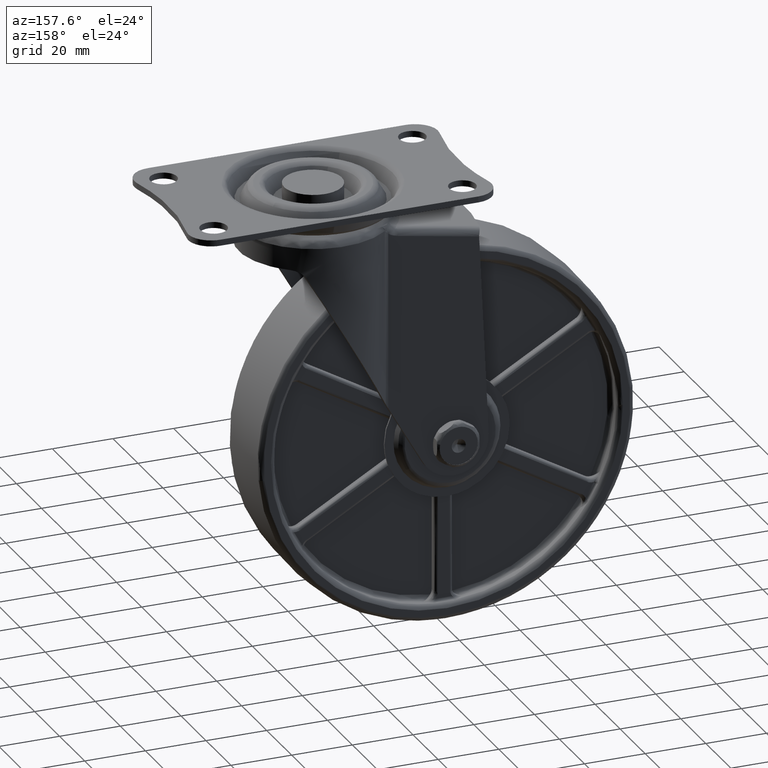
[diagram: clean part render]
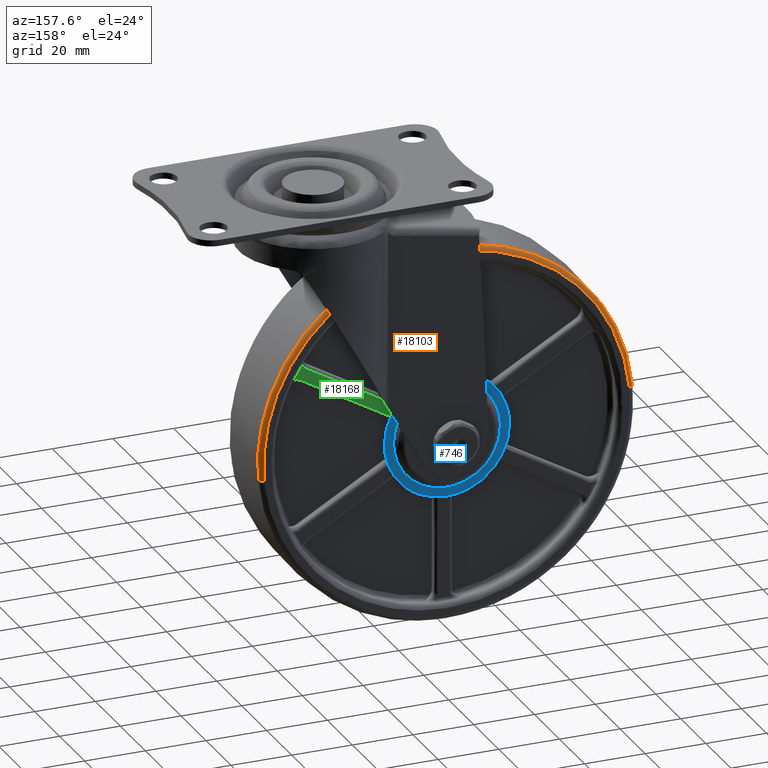
[diagram: same view with three faces highlighted in distinct colors, each labeled with its STEP entity id]
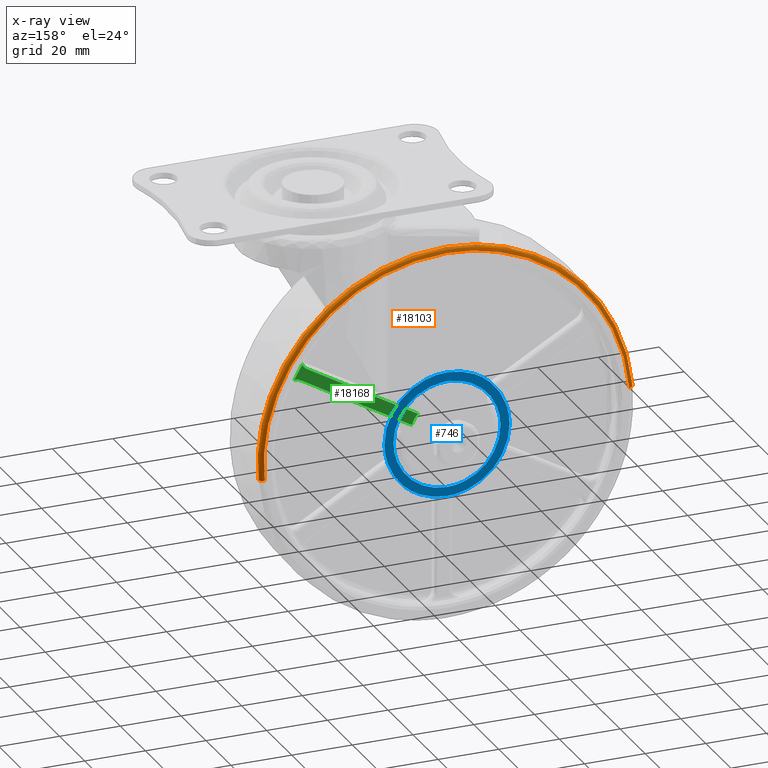
[diagram: x-ray of the same camera — body ghosted, the three highlighted faces saturated]
A machine part, auxiliary view with three faces highlighted in distinct colors.
The next image is the same camera in x-ray (body ghosted, the three faces saturated) — at least one of them is partly hidden behind the body in this view.
Their STEP definitions:

[orange] entity #18103 — the highlighted face is a freeform B-spline surface patch.
#17810=CARTESIAN_POINT('',(-39.0,11.167479376650549,-21.625519350434011));
#17811=VERTEX_POINT('',#17810);
#17830=CARTESIAN_POINT('',(22.635247783619480,11.167480174429510,-88.935746989824423));
#17831=VERTEX_POINT('',#17830);
#17849=CARTESIAN_POINT('',(-39.0,11.167479376650549,-21.625519350434011));
#17850=CARTESIAN_POINT('',(-36.327236504812710,11.167479392428490,-21.625436204308318));
#17851=CARTESIAN_POINT('',(-30.848059092624549,11.167479427066951,-21.981052245683479));
#17852=CARTESIAN_POINT('',(-22.836209396064469,11.167479484706121,-23.585280365068900));
#17853=CARTESIAN_POINT('',(-14.348925162363200,11.167479553578080,-26.496579455980061));
#17854=CARTESIAN_POINT('',(-6.852582633531720,11.167479622959590,-30.394385634689339));
#17855=CARTESIAN_POINT('',(0.561098812728439,11.167479700759200,-35.673679589134721));
#17856=CARTESIAN_POINT('',(7.495005261050967,11.167479783740291,-42.196152746708890));
#17857=CARTESIAN_POINT('',(13.193949125724860,11.167479866626699,-49.834767290464420));
#17858=CARTESIAN_POINT('',(17.492643757010100,11.167479943719179,-57.856973082867533));
#17859=CARTESIAN_POINT('',(20.223005227087629,11.167480005814859,-64.989020017928496));
#17860=CARTESIAN_POINT('',(22.163662488503348,11.167480069293809,-73.058738408794696));
#17861=CARTESIAN_POINT('',(23.003337746006480,11.167480124919431,-80.918753583190565));
#17862=CARTESIAN_POINT('',(22.858365558000070,11.167480159442190,-86.406441837872222));
#17863=CARTESIAN_POINT('',(22.635247783619480,11.167480174429510,-88.935746989824423));
#17864=B_SPLINE_CURVE_WITH_KNOTS('',3,(#17849,#17850,#17851,#17852,#17853,#17854,#17855,#17856,#17857,#17858,#17859,#17860,#17861,#17862,#17863),.UNSPECIFIED.,.F.,.U.,(4,1,1,1,1,1,1,1,1,1,1,1,4),(0.000000117653897,8.018293362872015,16.437623303935649,24.456032366947682,34.879926751580129,41.695552408398363,51.718424526233349,63.345071278760891,70.160716614818426,78.980964381555253,86.197529202244269,95.017749023445518,102.635147940654800),.UNSPECIFIED.);
#17865=EDGE_CURVE('',#17811,#17831,#17864,.T.);
#17904=CARTESIAN_POINT('',(-100.635247783618990,11.167480174434081,-78.064253010175634));
#17905=VERTEX_POINT('',#17904);
#17906=CARTESIAN_POINT('',(-100.635247783618990,11.167480174434081,-78.064253010175634));
#17907=CARTESIAN_POINT('',(-100.414904953145400,11.167480156772410,-75.565195882787862));
#17908=CARTESIAN_POINT('',(-99.616502810798181,11.167480116814319,-70.238804958504062));
#17909=CARTESIAN_POINT('',(-97.439061195035634,11.167480052503310,-62.640872747213081));
#17910=CARTESIAN_POINT('',(-94.723089517752300,11.167479993037260,-56.382648310636583));
#17911=CARTESIAN_POINT('',(-91.484363871463231,11.167479932467661,-50.524155625834261));
#17912=CARTESIAN_POINT('',(-87.185828461512884,11.167479862245489,-44.325808850359522));
#17913=CARTESIAN_POINT('',(-81.031546734159392,11.167479776675179,-37.773396166353557));
#17914=CARTESIAN_POINT('',(-74.723088724136318,11.167479700298900,-32.815533750432103));
#17915=CARTESIAN_POINT('',(-68.923560805985190,11.167479636382129,-29.234606185562559));
#17916=CARTESIAN_POINT('',(-62.162466800557240,11.167479567313960,-25.904746890332849));
#17917=CARTESIAN_POINT('',(-52.140836872104032,11.167479475447150,-22.599288753186570));
#17918=CARTESIAN_POINT('',(-43.778693152678372,11.167479410288600,-21.624481137478970));
#17919=CARTESIAN_POINT('',(-39.0,11.167479376650549,-21.625519350434011));
#17920=B_SPLINE_CURVE_WITH_KNOTS('',3,(#17906,#17907,#17908,#17909,#17910,#17911,#17912,#17913,#17914,#17915,#17916,#17917,#17918,#17919),.UNSPECIFIED.,.F.,.U.,(4,1,1,1,1,1,1,1,1,1,1,4),(0.000000114025838,7.526264355572096,16.127852755789121,23.654190348698361,27.954960147012219,36.198099170252782,46.233103682424179,54.834644143672513,60.210651504038353,66.661788126974500,77.413703663738133,91.749570069429922),.UNSPECIFIED.);
#17921=EDGE_CURVE('',#17905,#17811,#17920,.T.);
#17970=CARTESIAN_POINT('',(21.150392209023689,12.500000000000000,-88.804794337708188));
#17971=VERTEX_POINT('',#17970);
#17990=CARTESIAN_POINT('',(22.635247783619480,11.167480174429510,-88.935746989824423));
#17991=CARTESIAN_POINT('',(22.617571714459750,11.326061267049880,-88.934188098773035));
#17992=CARTESIAN_POINT('',(22.524994353405720,11.659689422503989,-88.926023499437861));
#17993=CARTESIAN_POINT('',(22.219481584537512,12.095671325043011,-88.899079661972138));
#17994=CARTESIAN_POINT('',(21.740574790605919,12.419234874715350,-88.856843827117061));
#17995=CARTESIAN_POINT('',(21.354807093764279,12.500232825927480,-88.822822132353068));
#17996=CARTESIAN_POINT('',(21.150392209023689,12.500000000000000,-88.804794337708188));
#17997=B_SPLINE_CURVE_WITH_KNOTS('',3,(#17990,#17991,#17992,#17993,#17994,#17995,#17996),.UNSPECIFIED.,.F.,.U.,(4,1,1,1,4),(0.000000543512500,0.478742114232636,1.025916645376025,1.573018017012169,2.188552349071501),.UNSPECIFIED.);
#17998=EDGE_CURVE('',#17831,#17971,#17997,.T.);
#18002=CARTESIAN_POINT('',(-99.150392209023678,12.500000000000000,-78.195205662291798));
#18003=VERTEX_POINT('',#18002);
#18004=CARTESIAN_POINT('',(-100.635247783618990,11.167480174434081,-78.064253010175634));
#18005=CARTESIAN_POINT('',(-100.617559488311400,11.326059097008880,-78.065812979477698));
#18006=CARTESIAN_POINT('',(-100.525011302381200,11.659691417362980,-78.073975005795049));
#18007=CARTESIAN_POINT('',(-100.219474002569300,12.095679159442950,-78.100921006698186));
#18008=CARTESIAN_POINT('',(-99.740574499906074,12.419207841271570,-78.143156198520273));
#18009=CARTESIAN_POINT('',(-99.354807835362806,12.500255617818640,-78.177177802244060));
#18010=CARTESIAN_POINT('',(-99.150392209023678,12.500000000000000,-78.195205662291798));
#18011=B_SPLINE_CURVE_WITH_KNOTS('',3,(#18004,#18005,#18006,#18007,#18008,#18009,#18010),.UNSPECIFIED.,.F.,.U.,(4,1,1,1,4),(0.000000543514600,0.478742114233247,1.025916645374767,1.573018017009212,2.188552349066896),.UNSPECIFIED.);
#18012=EDGE_CURVE('',#17905,#18003,#18011,.T.);
#18036=CARTESIAN_POINT('',(-100.643010737075850,11.069002713040794,-78.063568378241428));
#18037=CARTESIAN_POINT('',(-95.206579115317268,11.069002713040790,-16.420557641165576));
#18038=CARTESIAN_POINT('',(-33.563568378241428,11.069002713040794,-21.856989262924127));
#18039=CARTESIAN_POINT('',(28.079442358834424,11.069002713040790,-27.293420884682703));
#18040=CARTESIAN_POINT('',(22.643010737075866,11.069002713040794,-88.936431621758558));
#18041=CARTESIAN_POINT('',(-100.572917373300640,12.597006374195018,-78.069750064936258));
#18042=CARTESIAN_POINT('',(-95.142667438236884,12.597006374195017,-16.496832691635621));
#18043=CARTESIAN_POINT('',(-33.569750064936279,12.597006374195018,-21.927082626699338));
#18044=CARTESIAN_POINT('',(28.003167308364368,12.597006374195017,-27.357332561763080));
#18045=CARTESIAN_POINT('',(22.572917373300648,12.597006374195018,-88.930249935063728));
#18046=CARTESIAN_POINT('',(-99.052483167513955,12.496776293056088,-78.203840475127265));
#18047=CARTESIAN_POINT('',(-93.756323642641249,12.496776293056092,-18.151357307613278));
#18048=CARTESIAN_POINT('',(-33.703840475127251,12.496776293056088,-23.447516832486020));
#18049=CARTESIAN_POINT('',(26.348642692386719,12.496776293056092,-28.743676357358755));
#18050=CARTESIAN_POINT('',(21.052483167513984,12.496776293056088,-88.796159524872735));
#18058=(BOUNDED_SURFACE()B_SPLINE_SURFACE(2,2,((#18036,#18041,#18046),(#18037,#18042,#18047),(#18038,#18043,#18048),(#18039,#18044,#18049),(#18040,#18045,#18050)),.UNSPECIFIED.,.F.,.F.,.U.)B_SPLINE_SURFACE_WITH_KNOTS((3,2,3),(3,3),(0.0,102.529904978388400,205.059809956776800),(0.0,2.519712432201552),.UNSPECIFIED.)GEOMETRIC_REPRESENTATION_ITEM()RATIONAL_B_SPLINE_SURFACE(((0.912994623404275,0.640728022503493,0.917245091500594),(0.645584689396021,0.453063129608467,0.648590224210145),(0.912994623404275,0.640728022503493,0.917245091500594),(0.645584689396021,0.453063129608467,0.648590224210145),(0.912994623404275,0.640728022503493,0.917245091500594)))REPRESENTATION_ITEM('')SURFACE());
#18059=CARTESIAN_POINT('',(-39.0,12.500000000000000,-23.116140247740500));
#18060=VERTEX_POINT('',#18059);
#18061=CARTESIAN_POINT('',(-39.0,12.500000000000000,-23.116140247740500));
#18062=CARTESIAN_POINT('',(-36.782868528527693,12.500000000000000,-23.116110470399239));
#18063=CARTESIAN_POINT('',(-31.566087838570329,12.500000000000000,-23.403705478699301));
#18064=CARTESIAN_POINT('',(-22.952587093422078,12.500000000000000,-25.012329514151070));
#18065=CARTESIAN_POINT('',(-14.702790557765899,12.500000000000000,-27.992596254813460));
#18066=CARTESIAN_POINT('',(-8.130960380322147,12.499999999999989,-31.491577674030768));
#18067=CARTESIAN_POINT('',(-2.911999443180512,12.500000000000069,-34.958796878052290));
#18068=CARTESIAN_POINT('',(2.644260867782579,12.499999999999950,-39.514707573989980));
#18069=CARTESIAN_POINT('',(7.715229721665144,12.500000000000130,-44.981227808847592));
#18070=CARTESIAN_POINT('',(12.353158018876741,12.499999999999879,-51.456639533715432));
#18071=CARTESIAN_POINT('',(16.188857960903778,12.500000000000250,-58.449619517443558));
#18072=CARTESIAN_POINT('',(19.035180485151461,12.500000000000030,-66.183838301606784));
#18073=CARTESIAN_POINT('',(20.629950741299751,12.499999999999989,-73.322497716842889));
#18074=CARTESIAN_POINT('',(21.477289084250991,12.500000000000000,-80.585375358810950));
#18075=CARTESIAN_POINT('',(21.425604264601571,12.500000000000000,-85.686846696391527));
#18076=CARTESIAN_POINT('',(21.150392209023689,12.500000000000000,-88.804794337708188));
#18077=B_SPLINE_CURVE_WITH_KNOTS('',3,(#18061,#18062,#18063,#18064,#18065,#18066,#18067,#18068,#18069,#18070,#18071,#18072,#18073,#18074,#18075,#18076),.UNSPECIFIED.,.F.,.U.,(4,1,1,1,1,1,1,1,1,1,1,1,1,4),(0.000000131234799,6.651413325265722,15.650358515958271,26.214421729012130,32.865851052308876,37.952248383830067,44.994960249876819,54.385053714352161,60.254001556679327,68.861751842509207,78.252004145357148,84.903437332290224,90.772387130978458,100.162562078281890),.UNSPECIFIED.);
#18078=EDGE_CURVE('',#18060,#17971,#18077,.T.);
#18079=ORIENTED_EDGE('',*,*,#18078,.F.);
#18080=CARTESIAN_POINT('',(-99.150392209023678,12.500000000000000,-78.195205662291798));
#18081=CARTESIAN_POINT('',(-98.772175494866588,12.499999999999959,-73.898013153859281));
#18082=CARTESIAN_POINT('',(-97.634399347396410,12.500000000000091,-68.146693416360691));
#18083=CARTESIAN_POINT('',(-94.522319649349228,12.499999999999989,-59.347099011528357));
#18084=CARTESIAN_POINT('',(-91.167329100309203,12.500000000000020,-52.650854499744923));
#18085=CARTESIAN_POINT('',(-85.730551640290273,12.500000000000011,-44.907810543363119));
#18086=CARTESIAN_POINT('',(-80.087785021242212,12.499999999999959,-38.969286414825852));
#18087=CARTESIAN_POINT('',(-73.584452407370009,12.499999999999989,-33.827758793083952));
#18088=CARTESIAN_POINT('',(-67.609726868093190,12.500000000000011,-30.162361324549110));
#18089=CARTESIAN_POINT('',(-60.821864970388162,12.500000000000000,-27.036744365078071));
#18090=CARTESIAN_POINT('',(-53.699905754261529,12.500000000000000,-24.756199529929390));
#18091=CARTESIAN_POINT('',(-46.228406262500968,12.500000000000000,-23.400083587649380));
#18092=CARTESIAN_POINT('',(-41.331742853177794,12.500000000000000,-23.116088753696570));
#18093=CARTESIAN_POINT('',(-39.0,12.500000000000000,-23.116140247740500));
#18094=B_SPLINE_CURVE_WITH_KNOTS('',3,(#18080,#18081,#18082,#18083,#18084,#18085,#18086,#18087,#18088,#18089,#18090,#18091,#18092,#18093),.UNSPECIFIED.,.F.,.U.,(4,1,1,1,1,1,1,1,1,1,1,4),(0.000000115640248,12.941189311116670,17.488130893241991,27.981034963609769,35.326035693901190,45.818867102606902,52.464335335956306,60.159138851686492,66.804657694834162,74.849203116504825,82.543993758639374,89.539228577268645),.UNSPECIFIED.);
#18095=EDGE_CURVE('',#18003,#18060,#18094,.T.);
#18096=ORIENTED_EDGE('',*,*,#18095,.F.);
#18097=ORIENTED_EDGE('',*,*,#18012,.F.);
#18098=ORIENTED_EDGE('',*,*,#17921,.T.);
#18099=ORIENTED_EDGE('',*,*,#17865,.T.);
#18100=ORIENTED_EDGE('',*,*,#17998,.T.);
#18101=EDGE_LOOP('',(#18079,#18096,#18097,#18098,#18099,#18100));
#18102=FACE_OUTER_BOUND('',#18101,.T.);
#18103=ADVANCED_FACE('',(#18102),#18058,.T.);

[blue] entity #746 — the highlighted face is a freeform B-spline surface patch.
#320=CARTESIAN_POINT('',(-52.001000922250071,12.499999736069549,-95.413222438487196));
#321=VERTEX_POINT('',#320);
#322=CARTESIAN_POINT('',(-39.0,12.500000000000000,-101.133799000000000));
#323=VERTEX_POINT('',#322);
#324=CARTESIAN_POINT('',(-52.001000922250071,12.499999736069549,-95.413222438487196));
#325=CARTESIAN_POINT('',(-51.280895526803739,12.499999750688239,-96.199163028339470));
#326=CARTESIAN_POINT('',(-49.414998236827742,12.499999788567440,-97.897464469300530));
#327=CARTESIAN_POINT('',(-46.427081400599882,12.499999849224460,-99.626693015612148));
#328=CARTESIAN_POINT('',(-42.806853694841323,12.499999922717910,-100.841588364399000));
#329=CARTESIAN_POINT('',(-40.446706769832517,12.499999970630739,-101.134168300727100));
#330=CARTESIAN_POINT('',(-39.0,12.500000000000000,-101.133799000000000));
#331=B_SPLINE_CURVE_WITH_KNOTS('',3,(#324,#325,#326,#327,#328,#329,#330),.UNSPECIFIED.,.F.,.U.,(4,1,1,1,4),(0.000000055040529,3.197917781164689,7.537934716903376,10.279036425533381,14.619075494488889),.UNSPECIFIED.);
#332=EDGE_CURVE('',#321,#323,#331,.T.);
#342=CARTESIAN_POINT('',(-25.998999077749890,12.499999736069540,-71.586777561512761));
#343=VERTEX_POINT('',#342);
#349=CARTESIAN_POINT('',(-21.366201000000160,12.500000000000000,-83.499997599629580));
#350=VERTEX_POINT('',#349);
#351=CARTESIAN_POINT('',(-21.366201000000160,12.500000000000000,-83.499997599629580));
#352=CARTESIAN_POINT('',(-21.366051738726629,12.499999974341909,-82.341849617670434));
#353=CARTESIAN_POINT('',(-21.588466887938221,12.499999924536960,-80.093767427239186));
#354=CARTESIAN_POINT('',(-22.507195051149051,12.499999856264580,-77.012107937545807));
#355=CARTESIAN_POINT('',(-23.943782235600040,12.499999792607120,-74.138755292896903));
#356=CARTESIAN_POINT('',(-25.216457951612110,12.499999754984380,-72.440550947544736));
#357=CARTESIAN_POINT('',(-25.998999077749890,12.499999736069540,-71.586777561512761));
#358=B_SPLINE_CURVE_WITH_KNOTS('',3,(#351,#352,#353,#354,#355,#356,#357),.UNSPECIFIED.,.F.,.U.,(4,1,1,1,4),(0.000000053831240,3.474431255063420,6.744446381181831,9.605773603542462,13.080204804807590),.UNSPECIFIED.);
#359=EDGE_CURVE('',#350,#343,#358,.T.);
#361=CARTESIAN_POINT('',(-39.0,12.500000000000000,-101.133799000000000));
#362=CARTESIAN_POINT('',(-37.629455645122320,12.500000000000020,-101.134099978678710));
#363=CARTESIAN_POINT('',(-35.177052193562943,12.499999999999980,-100.846389627496090));
#364=CARTESIAN_POINT('',(-32.225462130867413,12.500000000000041,-99.851118250422132));
#365=CARTESIAN_POINT('',(-29.523537089770990,12.499999999999840,-98.470354643818311));
#366=CARTESIAN_POINT('',(-27.075273822582879,12.500000000000480,-96.654675911225041));
#367=CARTESIAN_POINT('',(-25.046155578321152,12.499999999999410,-94.387721254490444));
#368=CARTESIAN_POINT('',(-23.415618104866670,12.500000000000551,-91.914935079682579));
#369=CARTESIAN_POINT('',(-22.342923198969249,12.499999999999780,-89.534534763077431));
#370=CARTESIAN_POINT('',(-21.551034091281021,12.499999999999950,-86.529502275584974));
#371=CARTESIAN_POINT('',(-21.366046768946351,12.499999999999890,-84.654122853452506));
#372=CARTESIAN_POINT('',(-21.366201000000160,12.500000000000000,-83.499997599629580));
#373=B_SPLINE_CURVE_WITH_KNOTS('',3,(#361,#362,#363,#364,#365,#366,#367,#368,#369,#370,#371,#372),.UNSPECIFIED.,.F.,.U.,(4,1,1,1,1,1,1,1,1,4),(0.000000219318359,4.111594564645085,7.357629063677166,9.305265537298624,13.200529337056841,16.446381198062141,18.394016469191151,22.072884376325099,24.236923409433452,27.699281849681249),.UNSPECIFIED.);
#374=EDGE_CURVE('',#323,#350,#373,.T.);
#397=CARTESIAN_POINT('',(-56.633798999999833,12.500000000000000,-83.500002400370278));
#398=VERTEX_POINT('',#397);
#399=CARTESIAN_POINT('',(-56.633798999999833,12.500000000000000,-83.500002400370278));
#400=CARTESIAN_POINT('',(-56.634115165177803,12.499999969813530,-84.862552919897766));
#401=CARTESIAN_POINT('',(-56.411552089112249,12.499999927556960,-86.769913960714447));
#402=CARTESIAN_POINT('',(-55.531514086666810,12.499999859272121,-89.852139948105204));
#403=CARTESIAN_POINT('',(-54.261640126860733,12.499999798673560,-92.587422459620655));
#404=CARTESIAN_POINT('',(-52.783516757691622,12.499999754984630,-94.559436939172315));
#405=CARTESIAN_POINT('',(-52.001000922250071,12.499999736069549,-95.413222438487196));
#406=B_SPLINE_CURVE_WITH_KNOTS('',3,(#399,#400,#401,#402,#403,#404,#405),.UNSPECIFIED.,.F.,.U.,(4,1,1,1,4),(0.000000053829879,4.087564431660432,5.722591268249875,9.605773603543263,13.080204804807700),.UNSPECIFIED.);
#407=EDGE_CURVE('',#398,#321,#406,.T.);
#409=CARTESIAN_POINT('',(-39.0,12.500000000000000,-65.866201000000018));
#410=VERTEX_POINT('',#409);
#411=CARTESIAN_POINT('',(-39.0,12.500000000000000,-65.866201000000018));
#412=CARTESIAN_POINT('',(-40.370557046189099,12.500000000000011,-65.865874925218137));
#413=CARTESIAN_POINT('',(-42.606515977186163,12.499999999999970,-66.128309413628912));
#414=CARTESIAN_POINT('',(-45.916272894477622,12.500000000000041,-67.176736181108865));
#415=CARTESIAN_POINT('',(-48.611457681105122,12.499999999999940,-68.596147832684011));
#416=CARTESIAN_POINT('',(-51.166193939719193,12.500000000000000,-70.615334676371305));
#417=CARTESIAN_POINT('',(-53.292141808311328,12.500000000000140,-72.990027734936731));
#418=CARTESIAN_POINT('',(-55.192808058998537,12.499999999999710,-76.160572707845503));
#419=CARTESIAN_POINT('',(-56.378217603704101,12.500000000000631,-79.749060096027065));
#420=CARTESIAN_POINT('',(-56.633882202881871,12.499999999999311,-82.345899421936778));
#421=CARTESIAN_POINT('',(-56.633798999999833,12.500000000000000,-83.500002400370278));
#422=B_SPLINE_CURVE_WITH_KNOTS('',3,(#411,#412,#413,#414,#415,#416,#417,#418,#419,#420,#421),.UNSPECIFIED.,.F.,.U.,(4,1,1,1,1,1,1,1,4),(0.000000219269733,4.111594564603781,6.708418698581664,10.387281301645540,13.200529337030201,16.446381198040712,19.908854003934621,24.236923409426499,27.699281849681370),.UNSPECIFIED.);
#423=EDGE_CURVE('',#410,#398,#422,.T.);
#425=CARTESIAN_POINT('',(-25.998999077749890,12.499999736069540,-71.586777561512761));
#426=CARTESIAN_POINT('',(-26.873300664027301,12.499999753818560,-70.632254591763143));
#427=CARTESIAN_POINT('',(-28.429983127694818,12.499999785420400,-69.270493921075527));
#428=CARTESIAN_POINT('',(-30.976078153171699,12.499999837108140,-67.730247345901915));
#429=CARTESIAN_POINT('',(-33.225524398898543,12.499999882773650,-66.775044671641680));
#430=CARTESIAN_POINT('',(-35.954434539177100,12.499999938172641,-66.051833583132904));
#431=CARTESIAN_POINT('',(-37.857878542820231,12.499999976814051,-65.866037970346952));
#432=CARTESIAN_POINT('',(-39.0,12.500000000000000,-65.866201000000018));
#433=B_SPLINE_CURVE_WITH_KNOTS('',3,(#425,#426,#427,#428,#429,#430,#431,#432),.UNSPECIFIED.,.F.,.U.,(4,1,1,1,1,4),(0.000000055044621,3.883195487520778,6.167449694380856,8.908490315492958,11.192733138102620,14.619075494488900),.UNSPECIFIED.);
#434=EDGE_CURVE('',#343,#410,#433,.T.);
#648=CARTESIAN_POINT('',(-61.695115440114847,12.500000000000000,-106.195115440115400));
#649=CARTESIAN_POINT('',(-61.695115440114847,12.500000000000000,-60.804883453001402));
#650=CARTESIAN_POINT('',(-16.304883453001921,12.500000000000000,-106.195115440115400));
#651=CARTESIAN_POINT('',(-16.304883453001921,12.500000000000000,-60.804883453001402));
#652=B_SPLINE_SURFACE_WITH_KNOTS('',1,1,((#648,#650),(#649,#651)),.UNSPECIFIED.,.F.,.F.,.U.,(2,2),(2,2),(0.0,45.390231987113992),(0.0,45.390231987112927),.UNSPECIFIED.);
#653=CARTESIAN_POINT('',(-59.633798999999513,12.500000000000000,-83.500004525153116));
#654=VERTEX_POINT('',#653);
#655=CARTESIAN_POINT('',(-39.0,12.500000000000000,-104.133799000000000));
#656=VERTEX_POINT('',#655);
#657=CARTESIAN_POINT('',(-59.633798999999513,12.500000000000000,-83.500004525153116));
#658=CARTESIAN_POINT('',(-59.634205475856056,12.499999999999989,-85.188136518685795));
#659=CARTESIAN_POINT('',(-59.227590949705352,12.500000000000080,-88.479743928779456));
#660=CARTESIAN_POINT('',(-57.692791164661578,12.499999999999890,-92.532856213837505));
#661=CARTESIAN_POINT('',(-55.872075667825193,12.500000000000171,-95.486909300013679));
#662=CARTESIAN_POINT('',(-53.994481347430749,12.499999999999799,-97.774813193749324));
#663=CARTESIAN_POINT('',(-51.561437809898372,12.500000000000149,-100.007584205255990));
#664=CARTESIAN_POINT('',(-48.838588289570559,12.500000000000030,-101.731745637632500));
#665=CARTESIAN_POINT('',(-45.971357377430273,12.499999999999860,-102.981593582706200));
#666=CARTESIAN_POINT('',(-42.882532310518179,12.500000000000179,-103.877383978116900));
#667=CARTESIAN_POINT('',(-40.434891468410108,12.499999999999851,-104.134040150908700));
#668=CARTESIAN_POINT('',(-39.0,12.500000000000000,-104.133799000000000));
#669=B_SPLINE_CURVE_WITH_KNOTS('',3,(#657,#658,#659,#660,#661,#662,#663,#664,#665,#666,#667,#668),.UNSPECIFIED.,.F.,.U.,(4,1,1,1,1,1,1,1,1,4),(0.000000147757461,5.064318274240879,9.875445249045441,12.914096426753760,15.446275941162760,18.737954474981429,22.789454934726031,25.068423654397080,28.107056959509379,32.411696494938340),.UNSPECIFIED.);
#670=EDGE_CURVE('',#654,#656,#669,.T.);
#671=ORIENTED_EDGE('',*,*,#670,.F.);
#672=CARTESIAN_POINT('',(-53.203369144859380,12.499999999538540,-68.532771816876476));
#673=VERTEX_POINT('',#672);
#674=CARTESIAN_POINT('',(-53.203369144859380,12.499999999538540,-68.532771816876476));
#675=CARTESIAN_POINT('',(-54.279123341854401,12.499999999569971,-69.553211829410614));
#676=CARTESIAN_POINT('',(-55.697915251117777,12.499999999621600,-71.225554674756154));
#677=CARTESIAN_POINT('',(-57.464486911925277,12.499999999711290,-74.137514043980246));
#678=CARTESIAN_POINT('',(-58.639701176716557,12.499999999795710,-76.872859148855440));
#679=CARTESIAN_POINT('',(-59.453614828962927,12.499999999897771,-80.185726026872970));
#680=CARTESIAN_POINT('',(-59.633877828767140,12.499999999965080,-82.366162453549038));
#681=CARTESIAN_POINT('',(-59.633798999999513,12.500000000000000,-83.500004525153116));
#682=B_SPLINE_CURVE_WITH_KNOTS('',3,(#674,#675,#676,#677,#678,#679,#680,#681),.UNSPECIFIED.,.F.,.U.,(4,1,1,1,1,4),(0.000000046399038,4.448172210522206,6.541442909003017,10.204612877619651,13.344522740160160,16.746055740290519),.UNSPECIFIED.);
#683=EDGE_CURVE('',#673,#654,#682,.T.);
#684=ORIENTED_EDGE('',*,*,#683,.F.);
#685=CARTESIAN_POINT('',(-39.0,12.500000000000000,-62.866201000000011));
#686=VERTEX_POINT('',#685);
#687=CARTESIAN_POINT('',(-39.0,12.500000000000000,-62.866201000000011));
#688=CARTESIAN_POINT('',(-40.387070126345513,12.499999999954950,-62.866003699963038));
#689=CARTESIAN_POINT('',(-42.753142025593732,12.499999999878041,-63.105760004724893));
#690=CARTESIAN_POINT('',(-46.455542112202643,12.499999999757790,-64.141571703933451));
#691=CARTESIAN_POINT('',(-49.926922716226272,12.499999999644940,-65.821868649729780));
#692=CARTESIAN_POINT('',(-52.197335116039632,12.499999999571260,-67.577872301126021));
#693=CARTESIAN_POINT('',(-53.203369144859380,12.499999999538540,-68.532771816876476));
#694=B_SPLINE_CURVE_WITH_KNOTS('',3,(#687,#688,#689,#690,#691,#692,#693),.UNSPECIFIED.,.F.,.U.,(4,1,1,1,4),(0.000000050636679,4.161189203220088,7.098538305085990,11.504458468075891,15.665647620622011),.UNSPECIFIED.);
#695=EDGE_CURVE('',#686,#673,#694,.T.);
#696=ORIENTED_EDGE('',*,*,#695,.F.);
#697=CARTESIAN_POINT('',(-18.366201000000490,12.500000000000000,-83.499995474847296));
#698=VERTEX_POINT('',#697);
#699=CARTESIAN_POINT('',(-18.366201000000490,12.500000000000000,-83.499995474847296));
#700=CARTESIAN_POINT('',(-18.366069163284919,12.500000000000000,-82.233928453475315));
#701=CARTESIAN_POINT('',(-18.599972879822200,12.499999999999989,-79.701824980012347));
#702=CARTESIAN_POINT('',(-19.593530850790859,12.500000000000000,-76.195034148593663));
#703=CARTESIAN_POINT('',(-20.913869163794949,12.499999999999970,-73.447520410686906));
#704=CARTESIAN_POINT('',(-22.526775052099200,12.500000000000041,-70.968262238478900));
#705=CARTESIAN_POINT('',(-24.629392850335009,12.499999999999909,-68.530590849103945));
#706=CARTESIAN_POINT('',(-27.807673430000118,12.500000000000060,-65.986611484668103));
#707=CARTESIAN_POINT('',(-31.145270843836069,12.499999999999970,-64.306753633635765));
#708=CARTESIAN_POINT('',(-34.948725973449868,12.500000000000020,-63.153061349475621));
#709=CARTESIAN_POINT('',(-37.396285340642443,12.500000000000020,-62.865871944818480));
#710=CARTESIAN_POINT('',(-39.0,12.500000000000000,-62.866201000000011));
#711=B_SPLINE_CURVE_WITH_KNOTS('',3,(#699,#700,#701,#702,#703,#704,#705,#706,#707,#708,#709,#710),.UNSPECIFIED.,.F.,.U.,(4,1,1,1,1,1,1,1,1,4),(0.000000147714324,3.798200768100710,7.596488784586189,10.888341429413961,12.914096426730900,16.459023707932690,20.510487921942790,25.068423654388859,27.600627959385928,32.411696494938489),.UNSPECIFIED.);
#712=EDGE_CURVE('',#698,#686,#711,.T.);
#713=ORIENTED_EDGE('',*,*,#712,.F.);
#714=CARTESIAN_POINT('',(-24.796630855140549,12.499999999538540,-98.467228183123609));
#715=VERTEX_POINT('',#714);
#716=CARTESIAN_POINT('',(-24.796630855140549,12.499999999538540,-98.467228183123609));
#717=CARTESIAN_POINT('',(-23.720915569170209,12.499999999570010,-97.446764714497647));
#718=CARTESIAN_POINT('',(-21.961449558040599,12.499999999633911,-95.373160128971904));
#719=CARTESIAN_POINT('',(-19.876976309373550,12.499999999749599,-91.622881908353591));
#720=CARTESIAN_POINT('',(-18.640679716508298,12.499999999870850,-87.686487845877565));
#721=CARTESIAN_POINT('',(-18.366089721621531,12.499999999959661,-84.808268377176177));
#722=CARTESIAN_POINT('',(-18.366201000000490,12.500000000000000,-83.499995474847296));
#723=B_SPLINE_CURVE_WITH_KNOTS('',3,(#716,#717,#718,#719,#720,#721,#722),.UNSPECIFIED.,.F.,.U.,(4,1,1,1,4),(0.000000046404349,4.448172210525680,8.111392723378154,12.821200057468641,16.746055740290121),.UNSPECIFIED.);
#724=EDGE_CURVE('',#715,#698,#723,.T.);
#725=ORIENTED_EDGE('',*,*,#724,.F.);
#726=CARTESIAN_POINT('',(-39.0,12.500000000000000,-104.133799000000000));
#727=CARTESIAN_POINT('',(-37.612940198537238,12.499999999954960,-104.133954964616510));
#728=CARTESIAN_POINT('',(-35.083641623311713,12.499999999872680,-103.877826644006700));
#729=CARTESIAN_POINT('',(-31.862032894821471,12.499999999768169,-102.934868256192100));
#730=CARTESIAN_POINT('',(-28.365401951118230,12.499999999654399,-101.343823700534900));
#731=CARTESIAN_POINT('',(-26.157449604959819,12.499999999582791,-99.759590067006499));
#732=CARTESIAN_POINT('',(-24.796630855140549,12.499999999538540,-98.467228183123609));
#733=B_SPLINE_CURVE_WITH_KNOTS('',3,(#726,#727,#728,#729,#730,#731,#732),.UNSPECIFIED.,.F.,.U.,(4,1,1,1,4),(0.000000050638249,4.161189203221039,7.588077666428825,10.035785725109911,15.665647620622019),.UNSPECIFIED.);
#734=EDGE_CURVE('',#656,#715,#733,.T.);
#735=ORIENTED_EDGE('',*,*,#734,.F.);
#736=EDGE_LOOP('',(#671,#684,#696,#713,#725,#735));
#737=FACE_OUTER_BOUND('',#736,.T.);
#738=ORIENTED_EDGE('',*,*,#374,.T.);
#739=ORIENTED_EDGE('',*,*,#359,.T.);
#740=ORIENTED_EDGE('',*,*,#434,.T.);
#741=ORIENTED_EDGE('',*,*,#423,.T.);
#742=ORIENTED_EDGE('',*,*,#407,.T.);
#743=ORIENTED_EDGE('',*,*,#332,.T.);
#744=EDGE_LOOP('',(#738,#739,#740,#741,#742,#743));
#745=FACE_BOUND('',#744,.T.);
#746=ADVANCED_FACE('',(#737,#745),#652,.T.);

[green] entity #18168 — the highlighted face is a freeform B-spline surface patch.
#11269=CARTESIAN_POINT('',(-28.431203420645851,10.0,-79.707503526657803));
#11270=VERTEX_POINT('',#11269);
#11359=CARTESIAN_POINT('',(-30.431203420645851,10.0,-76.243401911520095));
#11360=VERTEX_POINT('',#11359);
#11371=CARTESIAN_POINT('',(-28.431203420645851,10.0,-79.707503526657803));
#11372=CARTESIAN_POINT('',(-28.883504642176760,10.000000000000011,-78.445547847008498));
#11373=CARTESIAN_POINT('',(-29.564245556822950,10.000000000000011,-77.265953644317420));
#11374=CARTESIAN_POINT('',(-30.431203420645851,10.0,-76.243401911520095));
#11375=B_SPLINE_CURVE_WITH_KNOTS('',3,(#11371,#11372,#11373,#11374),.UNSPECIFIED.,.F.,.U.,(4,4),(0.000000015674094,4.021478937760064),.UNSPECIFIED.);
#11376=EDGE_CURVE('',#11270,#11360,#11375,.T.);
#13717=CARTESIAN_POINT('',(10.367252550548800,10.0,-58.124120035487501));
#13718=VERTEX_POINT('',#13717);
#14480=CARTESIAN_POINT('',(7.659782967926669,10.0,-53.434645158438698));
#14481=VERTEX_POINT('',#14480);
#14507=CARTESIAN_POINT('',(6.046430423103010,10.0,-55.183030192431012));
#14508=VERTEX_POINT('',#14507);
#14509=CARTESIAN_POINT('',(6.046430423103010,10.0,-55.183030192431012));
#14510=CARTESIAN_POINT('',(6.307932528842914,9.999999999999996,-55.032081030272842));
#14511=CARTESIAN_POINT('',(6.959522670244235,10.000000000000011,-54.550212227254427));
#14512=CARTESIAN_POINT('',(7.444337077464011,9.999999999999993,-53.889531440290710));
#14513=CARTESIAN_POINT('',(7.659782967926669,10.0,-53.434645158438698));
#14514=B_SPLINE_CURVE_WITH_KNOTS('',3,(#14509,#14510,#14511,#14512,#14513),.UNSPECIFIED.,.F.,.U.,(4,1,4),(0.000000060336187,0.905866578632902,2.415598039864413),.UNSPECIFIED.);
#14515=EDGE_CURVE('',#14508,#14481,#14514,.T.);
#14544=CARTESIAN_POINT('',(-30.431203420645851,10.0,-76.243401911520095));
#14545=CARTESIAN_POINT('',(6.046430423103010,10.0,-55.183030192431012));
#14546=QUASI_UNIFORM_CURVE('',1,(#14544,#14545),.UNSPECIFIED.,.F.,.U.);
#14547=EDGE_CURVE('',#11360,#14508,#14546,.T.);
#14576=CARTESIAN_POINT('',(8.046430423103031,10.0,-58.647131807568812));
#14577=VERTEX_POINT('',#14576);
#14578=CARTESIAN_POINT('',(10.367252550548800,10.0,-58.124120035487501));
#14579=CARTESIAN_POINT('',(10.066278547790340,10.0,-58.099854900815579));
#14580=CARTESIAN_POINT('',(9.256332203961717,10.0,-58.126578379856127));
#14581=CARTESIAN_POINT('',(8.482061588279583,10.0,-58.394995939996861));
#14582=CARTESIAN_POINT('',(8.046430423103031,10.0,-58.647131807568812));
#14583=B_SPLINE_CURVE_WITH_KNOTS('',3,(#14578,#14579,#14580,#14581,#14582),.UNSPECIFIED.,.F.,.U.,(4,1,4),(0.000000060338971,0.905866578634458,2.415598039864431),.UNSPECIFIED.);
#14584=EDGE_CURVE('',#13718,#14577,#14583,.T.);
#14634=CARTESIAN_POINT('',(8.046430423103031,10.0,-58.647131807568812));
#14635=CARTESIAN_POINT('',(-28.431203420645851,10.0,-79.707503526657803));
#14636=QUASI_UNIFORM_CURVE('',1,(#14634,#14635),.UNSPECIFIED.,.F.,.U.);
#14637=EDGE_CURVE('',#14577,#11270,#14636,.T.);
#18149=CARTESIAN_POINT('',(-32.469086217331700,10.0,-81.019832751228449));
#18150=CARTESIAN_POINT('',(12.405136441534520,10.0,-81.019832751228449));
#18151=CARTESIAN_POINT('',(-32.469086217331700,10.0,-52.122315229175072));
#18152=CARTESIAN_POINT('',(12.405136441534520,10.0,-52.122315229175072));
#18153=B_SPLINE_SURFACE_WITH_KNOTS('',1,1,((#18149,#18151),(#18150,#18152)),.UNSPECIFIED.,.F.,.F.,.U.,(2,2),(2,2),(0.0,44.874222658866223),(0.0,28.897517522053381),.UNSPECIFIED.);
#18154=ORIENTED_EDGE('',*,*,#14637,.T.);
#18155=ORIENTED_EDGE('',*,*,#11376,.T.);
#18156=ORIENTED_EDGE('',*,*,#14547,.T.);
#18157=ORIENTED_EDGE('',*,*,#14515,.T.);
#18158=CARTESIAN_POINT('',(7.659782967926669,10.0,-53.434645158438698));
#18159=CARTESIAN_POINT('',(8.637844985759545,10.0,-54.952516087890828));
#18160=CARTESIAN_POINT('',(9.541773231549623,10.000000000000011,-56.518155973672840));
#18161=CARTESIAN_POINT('',(10.367252550548800,10.0,-58.124120035487501));
#18162=B_SPLINE_CURVE_WITH_KNOTS('',3,(#18158,#18159,#18160,#18161),.UNSPECIFIED.,.F.,.U.,(4,4),(4.721015E-010,5.417097048431709),.UNSPECIFIED.);
#18163=EDGE_CURVE('',#14481,#13718,#18162,.T.);
#18164=ORIENTED_EDGE('',*,*,#18163,.T.);
#18165=ORIENTED_EDGE('',*,*,#14584,.T.);
#18166=EDGE_LOOP('',(#18154,#18155,#18156,#18157,#18164,#18165));
#18167=FACE_OUTER_BOUND('',#18166,.T.);
#18168=ADVANCED_FACE('',(#18167),#18153,.F.);